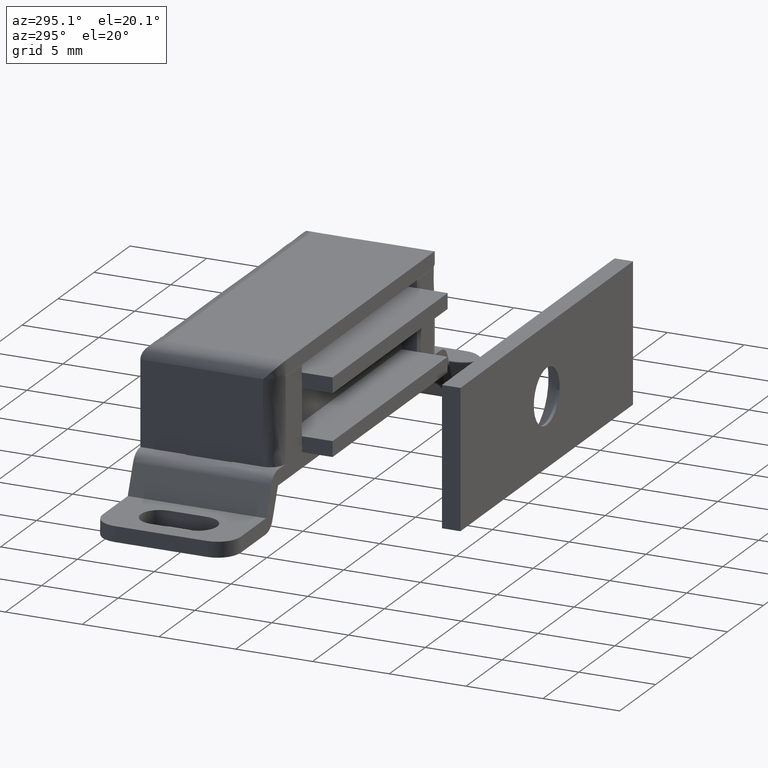
[diagram: clean part render]
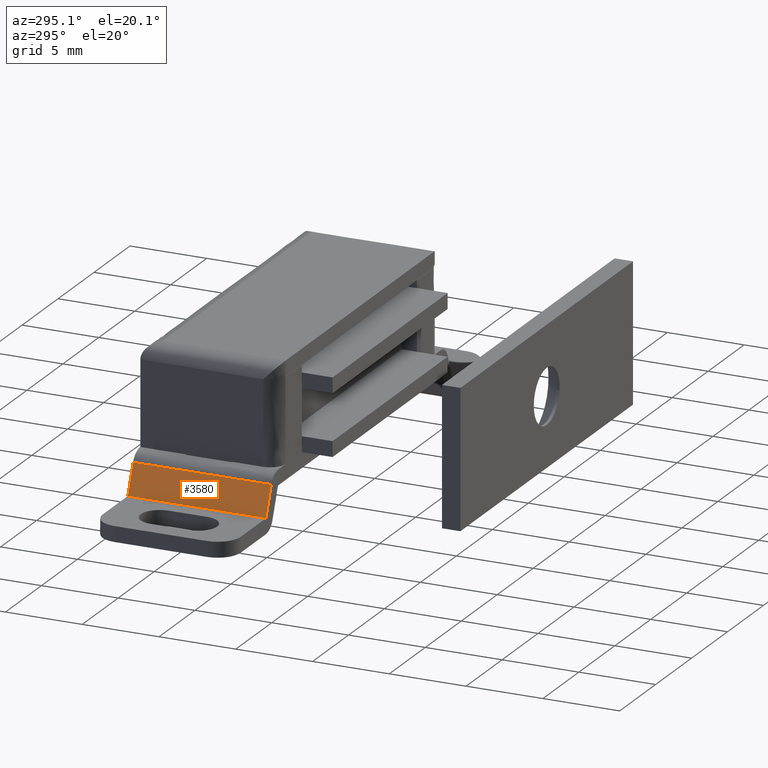
[diagram: same view with one face highlighted and labeled with its STEP entity id]
A machine part, auxiliary view. The second image highlights one B-rep face of the part: STEP entity #3580.
In plain terms, the highlighted face is a freeform B-spline surface patch.
Its self-contained STEP definition (entity closure, byte-faithful):
#2873=CARTESIAN_POINT('',(-12.251446116415380,-8.999999999999890,2.871388708898230));
#2874=VERTEX_POINT('',#2873);
#2901=CARTESIAN_POINT('',(-12.251446116415380,0.0,2.871388708898230));
#2902=VERTEX_POINT('',#2901);
#2916=CARTESIAN_POINT('',(-12.251446116415380,-8.999999999999890,2.871388708898230));
#2917=CARTESIAN_POINT('',(-12.251446116415380,0.0,2.871388708898230));
#2918=QUASI_UNIFORM_CURVE('',1,(#2916,#2917),.UNSPECIFIED.,.F.,.U.);
#2919=EDGE_CURVE('',#2874,#2902,#2918,.T.);
#3380=CARTESIAN_POINT('',(-12.999997000000000,0.0,1.0));
#3381=VERTEX_POINT('',#3380);
#3387=CARTESIAN_POINT('',(-12.251446116415380,0.0,2.871388708898230));
#3388=CARTESIAN_POINT('',(-12.999997000000000,0.0,1.0));
#3389=QUASI_UNIFORM_CURVE('',1,(#3387,#3388),.UNSPECIFIED.,.F.,.U.);
#3390=EDGE_CURVE('',#2902,#3381,#3389,.T.);
#3489=CARTESIAN_POINT('',(-12.999997000000000,-8.999999999999901,1.0));
#3490=VERTEX_POINT('',#3489);
#3491=CARTESIAN_POINT('',(-12.251446116415380,-8.999999999999890,2.871388708898230));
#3492=CARTESIAN_POINT('',(-12.999997000000000,-8.999999999999901,1.0));
#3493=QUASI_UNIFORM_CURVE('',1,(#3491,#3492),.UNSPECIFIED.,.F.,.U.);
#3494=EDGE_CURVE('',#2874,#3490,#3493,.T.);
#3553=CARTESIAN_POINT('',(-12.999997000000000,-8.999999999999901,1.0));
#3554=CARTESIAN_POINT('',(-12.999997000000000,0.0,1.0));
#3555=QUASI_UNIFORM_CURVE('',1,(#3553,#3554),.UNSPECIFIED.,.F.,.U.);
#3556=EDGE_CURVE('',#3490,#3381,#3555,.T.);
#3569=CARTESIAN_POINT('',(-12.214055959070000,-9.449549982556151,2.964864676684130));
#3570=CARTESIAN_POINT('',(-13.037387137267670,-9.449549982556151,0.906524082408654));
#3571=CARTESIAN_POINT('',(-12.214055959070000,0.449550223955061,2.964864676684130));
#3572=CARTESIAN_POINT('',(-13.037387137267670,0.449550223955061,0.906524082408654));
#3573=B_SPLINE_SURFACE_WITH_KNOTS('',1,1,((#3569,#3571),(#3570,#3572)),.UNSPECIFIED.,.F.,.F.,.U.,(2,2),(2,2),(0.0,2.216898786826924),(0.0,9.899100206511212),.UNSPECIFIED.);
#3574=ORIENTED_EDGE('',*,*,#3494,.F.);
#3575=ORIENTED_EDGE('',*,*,#2919,.T.);
#3576=ORIENTED_EDGE('',*,*,#3390,.T.);
#3577=ORIENTED_EDGE('',*,*,#3556,.F.);
#3578=EDGE_LOOP('',(#3574,#3575,#3576,#3577));
#3579=FACE_OUTER_BOUND('',#3578,.T.);
#3580=ADVANCED_FACE('',(#3579),#3573,.F.);